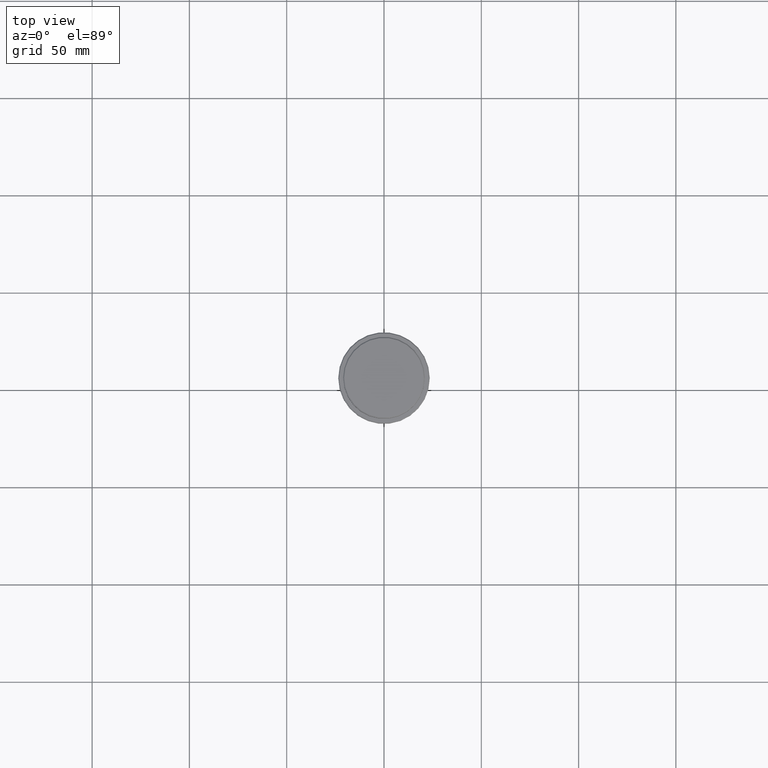
[diagram: clean part render]
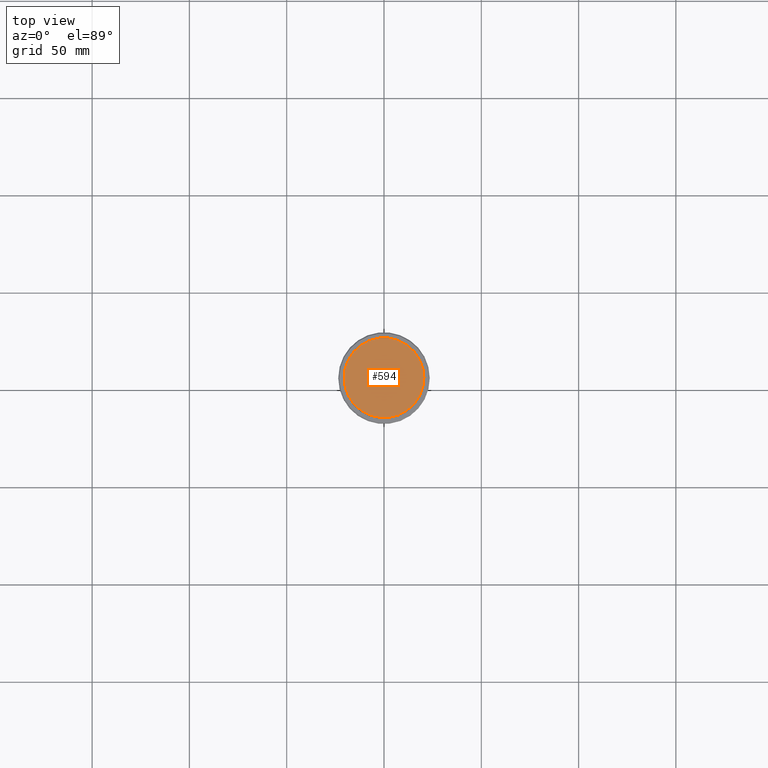
[diagram: same view with one face highlighted and labeled with its STEP entity id]
A machine part, top view. The second image highlights one B-rep face of the part: STEP entity #594.
In plain terms, the highlighted planar face has unit normal (0, -0, 1).
Its self-contained STEP definition (entity closure, byte-faithful):
#19 = CIRCLE ( 'NONE', #1085, 20.49999999999996447 ) ;
#132 = DIRECTION ( 'NONE',  ( 1.000000000000000000, 0.000000000000000000, 0.000000000000000000 ) ) ;
#232 = CARTESIAN_POINT ( 'NONE',  ( 0.000000000000000000, 0.000000000000000000, 0.000000000000000000 ) ) ;
#236 = AXIS2_PLACEMENT_3D ( 'NONE', #799, #1241, #1249 ) ;
#242 = DIRECTION ( 'NONE',  ( 1.000000000000000000, 0.000000000000000000, 0.000000000000000000 ) ) ;
#313 = DIRECTION ( 'NONE',  ( -0.000000000000000000, -0.000000000000000000, 1.000000000000000000 ) ) ;
#360 = FACE_OUTER_BOUND ( 'NONE', #816, .T. ) ;
#470 = CARTESIAN_POINT ( 'NONE',  ( -20.49999999999996447, 0.000000000000000000, 0.000000000000000000 ) ) ;
#496 = VERTEX_POINT ( 'NONE', #470 ) ;
#508 = CIRCLE ( 'NONE', #1045, 20.49999999999996447 ) ;
#552 = EDGE_CURVE ( 'NONE', #1042, #496, #508, .T. ) ;
#594 = ADVANCED_FACE ( 'NONE', ( #360 ), #815, .T. ) ;
#663 = ORIENTED_EDGE ( 'NONE', *, *, #1298, .T. ) ;
#799 = CARTESIAN_POINT ( 'NONE',  ( 0.000000000000000000, 0.000000000000000000, 0.000000000000000000 ) ) ;
#815 = PLANE ( 'NONE',  #236 ) ;
#816 = EDGE_LOOP ( 'NONE', ( #663, #1020 ) ) ;
#1020 = ORIENTED_EDGE ( 'NONE', *, *, #552, .T. ) ;
#1042 = VERTEX_POINT ( 'NONE', #1105 ) ;
#1045 = AXIS2_PLACEMENT_3D ( 'NONE', #1216, #313, #242 ) ;
#1085 = AXIS2_PLACEMENT_3D ( 'NONE', #232, #1107, #132 ) ;
#1105 = CARTESIAN_POINT ( 'NONE',  ( 20.49999999999996447, 2.541142108230755902E-15, 0.000000000000000000 ) ) ;
#1107 = DIRECTION ( 'NONE',  ( -0.000000000000000000, -0.000000000000000000, 1.000000000000000000 ) ) ;
#1216 = CARTESIAN_POINT ( 'NONE',  ( 0.000000000000000000, 0.000000000000000000, 0.000000000000000000 ) ) ;
#1241 = DIRECTION ( 'NONE',  ( 0.000000000000000000, -0.000000000000000000, 1.000000000000000000 ) ) ;
#1249 = DIRECTION ( 'NONE',  ( 1.000000000000000000, 0.000000000000000000, 0.000000000000000000 ) ) ;
#1298 = EDGE_CURVE ( 'NONE', #496, #1042, #19, .T. ) ;